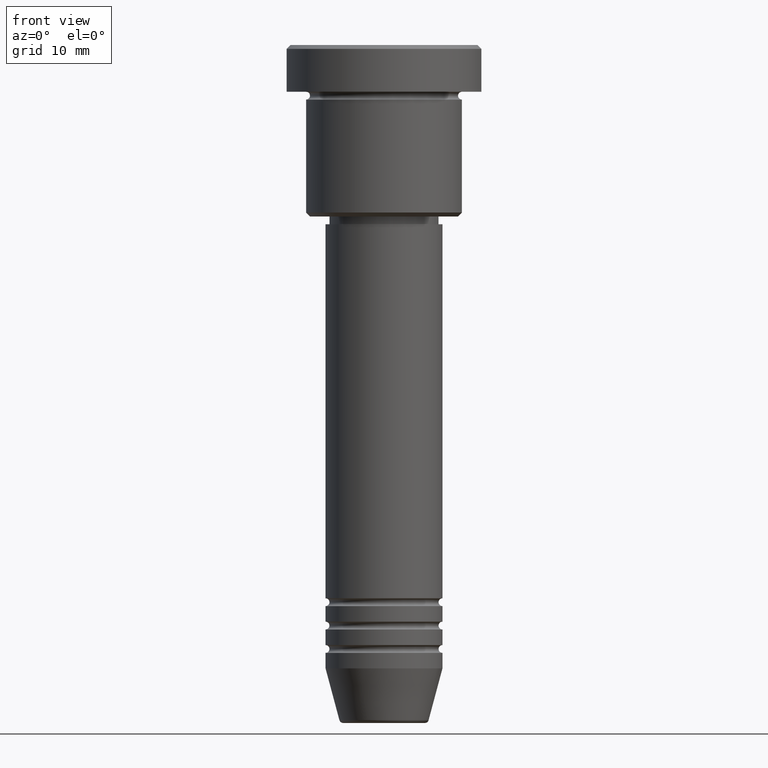
[diagram: clean part render]
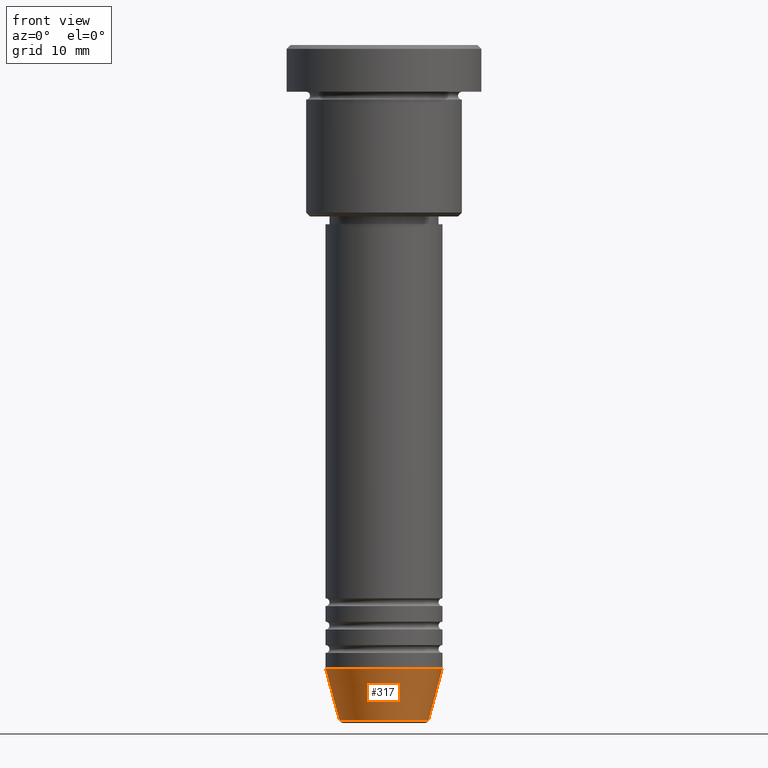
[diagram: same view with one face highlighted and labeled with its STEP entity id]
A machine part, front view. The second image highlights one B-rep face of the part: STEP entity #317.
In plain terms, the highlighted conical surface has half-angle 15 deg.
Its self-contained STEP definition (entity closure, byte-faithful):
#93 = CIRCLE ( 'NONE', #576, 7.500000000000000000 ) ;
#116 = CIRCLE ( 'NONE', #210, 5.723655072137191269 ) ;
#139 = DIRECTION ( 'NONE',  ( -0.000000000000000000, -0.000000000000000000, 1.000000000000000000 ) ) ;
#199 = CARTESIAN_POINT ( 'NONE',  ( -7.500000000000000000, 9.184850993605147944E-16, -79.99999999999998579 ) ) ;
#205 = CARTESIAN_POINT ( 'NONE',  ( 0.000000000000000000, 0.000000000000000000, -86.62940952255125637 ) ) ;
#210 = AXIS2_PLACEMENT_3D ( 'NONE', #205, #750, #654 ) ;
#215 = ORIENTED_EDGE ( 'NONE', *, *, #911, .F. ) ;
#317 = ADVANCED_FACE ( 'NONE', ( #1112 ), #718, .T. ) ;
#344 = EDGE_CURVE ( 'NONE', #918, #364, #848, .T. ) ;
#364 = VERTEX_POINT ( 'NONE', #468 ) ;
#466 = AXIS2_PLACEMENT_3D ( 'NONE', #646, #1017, #743 ) ;
#468 = CARTESIAN_POINT ( 'NONE',  ( 7.500000000000000000, 0.000000000000000000, -79.99999999999998579 ) ) ;
#575 = VECTOR ( 'NONE', #930, 1000.000000000000000 ) ;
#576 = AXIS2_PLACEMENT_3D ( 'NONE', #977, #139, #1153 ) ;
#601 = ORIENTED_EDGE ( 'NONE', *, *, #881, .T. ) ;
#616 = CARTESIAN_POINT ( 'NONE',  ( -7.500000000000000000, 9.184850993605147944E-16, -79.99999999999998579 ) ) ;
#646 = CARTESIAN_POINT ( 'NONE',  ( 0.000000000000000000, 0.000000000000000000, -79.99999999999998579 ) ) ;
#654 = DIRECTION ( 'NONE',  ( 1.000000000000000000, 0.000000000000000000, 0.000000000000000000 ) ) ;
#656 = EDGE_LOOP ( 'NONE', ( #215, #601, #993, #842 ) ) ;
#718 = CONICAL_SURFACE ( 'NONE', #466, 7.500000000000000000, 0.2617993877991500740 ) ;
#726 = VERTEX_POINT ( 'NONE', #616 ) ;
#743 = DIRECTION ( 'NONE',  ( 1.000000000000000000, 0.000000000000000000, 0.000000000000000000 ) ) ;
#748 = EDGE_CURVE ( 'NONE', #726, #364, #93, .T. ) ;
#750 = DIRECTION ( 'NONE',  ( -0.000000000000000000, -0.000000000000000000, 1.000000000000000000 ) ) ;
#769 = CARTESIAN_POINT ( 'NONE',  ( -5.723655072137190380, 8.097153428560735915E-16, -86.62940952255125637 ) ) ;
#789 = VECTOR ( 'NONE', #1016, 1000.000000000000000 ) ;
#842 = ORIENTED_EDGE ( 'NONE', *, *, #748, .F. ) ;
#848 = LINE ( 'NONE', #940, #575 ) ;
#881 = EDGE_CURVE ( 'NONE', #1122, #918, #116, .T. ) ;
#911 = EDGE_CURVE ( 'NONE', #1122, #726, #1101, .T. ) ;
#918 = VERTEX_POINT ( 'NONE', #1111 ) ;
#930 = DIRECTION ( 'NONE',  ( 0.2588190451025213501, 0.000000000000000000, 0.9659258262890680902 ) ) ;
#940 = CARTESIAN_POINT ( 'NONE',  ( 7.500000000000000000, 0.000000000000000000, -79.99999999999998579 ) ) ;
#977 = CARTESIAN_POINT ( 'NONE',  ( 0.000000000000000000, 0.000000000000000000, -79.99999999999998579 ) ) ;
#993 = ORIENTED_EDGE ( 'NONE', *, *, #344, .T. ) ;
#1016 = DIRECTION ( 'NONE',  ( -0.2588190451025213501, 3.169619151431772337E-17, 0.9659258262890680902 ) ) ;
#1017 = DIRECTION ( 'NONE',  ( -0.000000000000000000, -0.000000000000000000, 1.000000000000000000 ) ) ;
#1101 = LINE ( 'NONE', #199, #789 ) ;
#1111 = CARTESIAN_POINT ( 'NONE',  ( 5.723655072137191269, 0.000000000000000000, -86.62940952255125637 ) ) ;
#1112 = FACE_OUTER_BOUND ( 'NONE', #656, .T. ) ;
#1122 = VERTEX_POINT ( 'NONE', #769 ) ;
#1153 = DIRECTION ( 'NONE',  ( 1.000000000000000000, 0.000000000000000000, 0.000000000000000000 ) ) ;